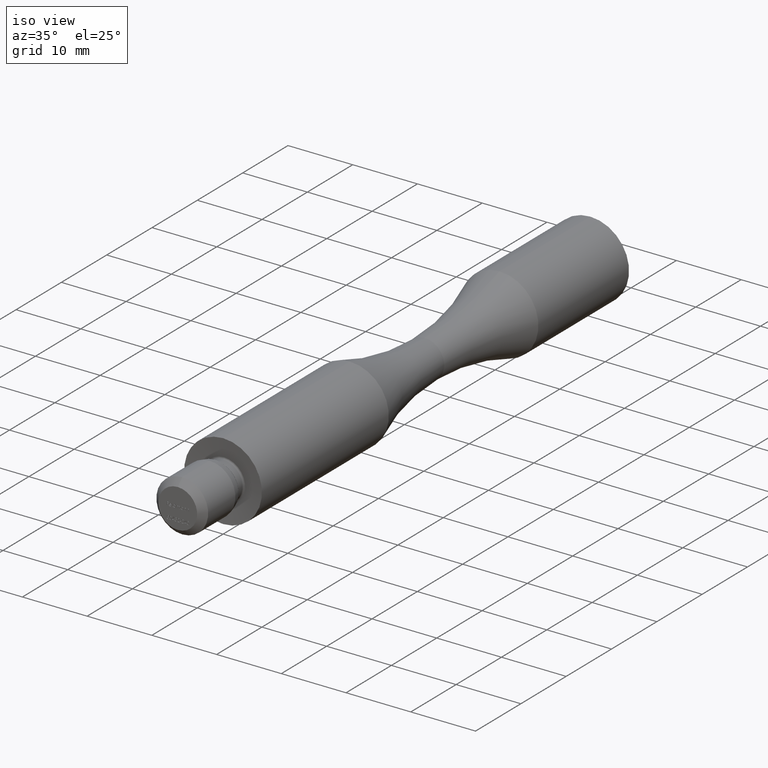
[diagram: clean part render]
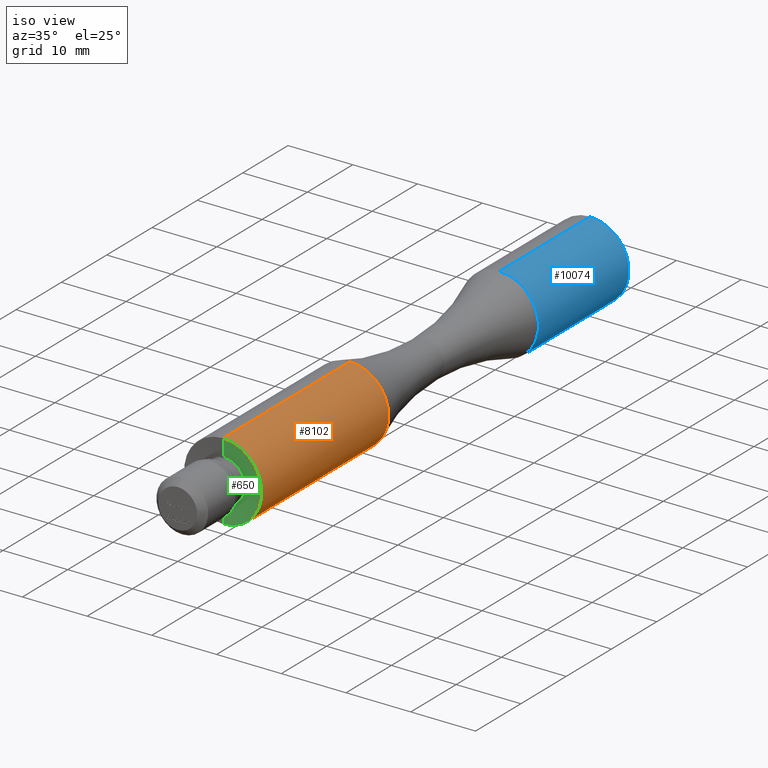
[diagram: same view with three faces highlighted in distinct colors, each labeled with its STEP entity id]
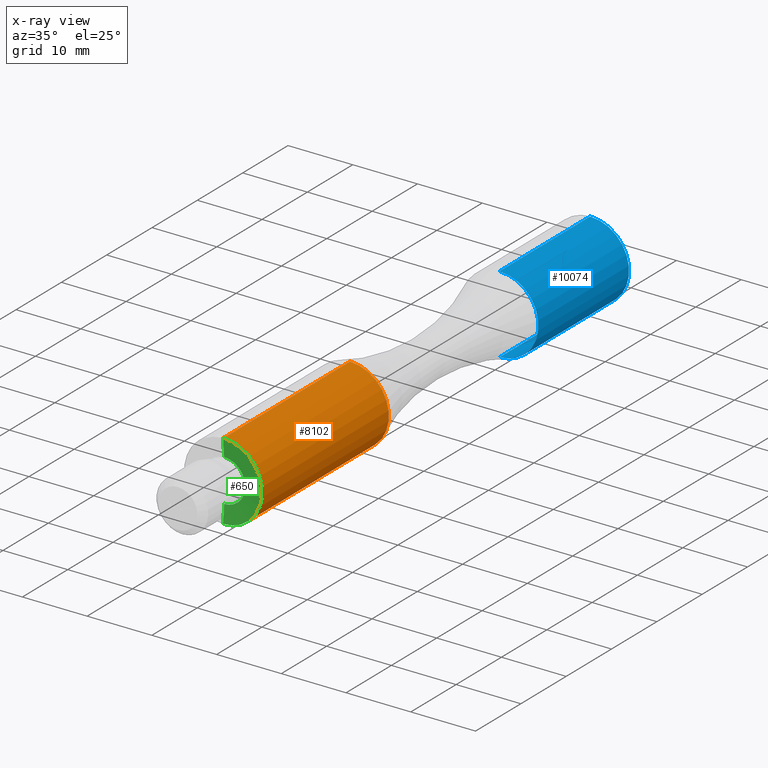
[diagram: x-ray of the same camera — body ghosted, the three highlighted faces saturated]
A machine part, iso view with three faces highlighted in distinct colors.
The next image is the same camera in x-ray (body ghosted, the three faces saturated) — at least one of them is partly hidden behind the body in this view.
Their STEP definitions:

[orange] entity #8102 — the highlighted cylindrical surface (partial cylindrical patch) has radius 6 mm, axis along (-0, -1, -0).
#397 = EDGE_CURVE ( 'NONE', #3908, #11954, #7045, .T. ) ;
#911 = AXIS2_PLACEMENT_3D ( 'NONE', #7086, #2817, #5937 ) ;
#1113 = EDGE_CURVE ( 'NONE', #4530, #3184, #7925, .T. ) ;
#1124 = VECTOR ( 'NONE', #1146, 1000.000000000000000 ) ;
#1146 = DIRECTION ( 'NONE',  ( -0.0000000000000000000, -1.000000000000000000, -0.0000000000000000000 ) ) ;
#2165 = EDGE_CURVE ( 'NONE', #4530, #3908, #9714, .T. ) ;
#2551 = CYLINDRICAL_SURFACE ( 'NONE', #5349, 5.999999999999995600 ) ;
#2690 = DIRECTION ( 'NONE',  ( 0.0000000000000000000, 0.0000000000000000000, -1.000000000000000000 ) ) ;
#2817 = DIRECTION ( 'NONE',  ( -0.0000000000000000000, -1.000000000000000000, -0.0000000000000000000 ) ) ;
#2949 = DIRECTION ( 'NONE',  ( -0.0000000000000000000, -1.000000000000000000, -0.0000000000000000000 ) ) ;
#3184 = VERTEX_POINT ( 'NONE', #3782 ) ;
#3771 = ORIENTED_EDGE ( 'NONE', *, *, #1113, .F. ) ;
#3782 = CARTESIAN_POINT ( 'NONE',  ( 0.0000000000000000000, 4.038967834731580400E-025, -6.000000000000003600 ) ) ;
#3908 = VERTEX_POINT ( 'NONE', #4969 ) ;
#4271 = AXIS2_PLACEMENT_3D ( 'NONE', #10399, #8385, #5217 ) ;
#4305 = ORIENTED_EDGE ( 'NONE', *, *, #9929, .F. ) ;
#4530 = VERTEX_POINT ( 'NONE', #13621 ) ;
#4969 = CARTESIAN_POINT ( 'NONE',  ( 7.347880794884111800E-016, 28.00000000000002100, 5.999999999999991100 ) ) ;
#5217 = DIRECTION ( 'NONE',  ( 0.0000000000000000000, 0.0000000000000000000, -1.000000000000000000 ) ) ;
#5349 = AXIS2_PLACEMENT_3D ( 'NONE', #6913, #9004, #2690 ) ;
#5937 = DIRECTION ( 'NONE',  ( 0.0000000000000000000, 0.0000000000000000000, -1.000000000000000000 ) ) ;
#6913 = CARTESIAN_POINT ( 'NONE',  ( 0.0000000000000000000, 0.0000000000000000000, 0.0000000000000000000 ) ) ;
#7045 = LINE ( 'NONE', #7433, #1124 ) ;
#7086 = CARTESIAN_POINT ( 'NONE',  ( 0.0000000000000000000, 4.038967834731580400E-025, 0.0000000000000000000 ) ) ;
#7431 = CARTESIAN_POINT ( 'NONE',  ( 7.347880794884122700E-016, 4.038967834731580400E-025, 6.000000000000003600 ) ) ;
#7433 = CARTESIAN_POINT ( 'NONE',  ( 7.347880794884114800E-016, 0.0000000000000000000, 5.999999999999995600 ) ) ;
#7640 = ORIENTED_EDGE ( 'NONE', *, *, #2165, .T. ) ;
#7925 = LINE ( 'NONE', #10341, #12357 ) ;
#7928 = CIRCLE ( 'NONE', #911, 6.000000000000000000 ) ;
#8029 = ORIENTED_EDGE ( 'NONE', *, *, #397, .T. ) ;
#8043 = EDGE_LOOP ( 'NONE', ( #7640, #8029, #4305, #3771 ) ) ;
#8102 = ADVANCED_FACE ( 'NONE', ( #9105 ), #2551, .T. ) ;
#8385 = DIRECTION ( 'NONE',  ( -0.0000000000000000000, -1.000000000000000000, -0.0000000000000000000 ) ) ;
#9004 = DIRECTION ( 'NONE',  ( -0.0000000000000000000, -1.000000000000000000, -0.0000000000000000000 ) ) ;
#9105 = FACE_OUTER_BOUND ( 'NONE', #8043, .T. ) ;
#9714 = CIRCLE ( 'NONE', #4271, 5.999999999999991100 ) ;
#9929 = EDGE_CURVE ( 'NONE', #3184, #11954, #7928, .T. ) ;
#10341 = CARTESIAN_POINT ( 'NONE',  ( 0.0000000000000000000, 0.0000000000000000000, -5.999999999999995600 ) ) ;
#10399 = CARTESIAN_POINT ( 'NONE',  ( 0.0000000000000000000, 28.00000000000002100, 0.0000000000000000000 ) ) ;
#11954 = VERTEX_POINT ( 'NONE', #7431 ) ;
#12357 = VECTOR ( 'NONE', #2949, 1000.000000000000000 ) ;
#13621 = CARTESIAN_POINT ( 'NONE',  ( 0.0000000000000000000, 28.00000000000002100, -5.999999999999991100 ) ) ;

[blue] entity #10074 — the highlighted cylindrical surface (partial cylindrical patch) has radius 6 mm, axis along (-0, -1, -0).
#140 = CARTESIAN_POINT ( 'NONE',  ( 7.347880794884121700E-016, 0.0000000000000000000, 6.000000000000001800 ) ) ;
#553 = VERTEX_POINT ( 'NONE', #1287 ) ;
#734 = FACE_OUTER_BOUND ( 'NONE', #10322, .T. ) ;
#1207 = CARTESIAN_POINT ( 'NONE',  ( 0.0000000000000000000, 0.0000000000000000000, 0.0000000000000000000 ) ) ;
#1287 = CARTESIAN_POINT ( 'NONE',  ( 7.347880794884123700E-016, 61.00000000000000000, 6.000000000000003600 ) ) ;
#1539 = DIRECTION ( 'NONE',  ( -0.0000000000000000000, -1.000000000000000000, -0.0000000000000000000 ) ) ;
#2198 = VECTOR ( 'NONE', #11167, 1000.000000000000000 ) ;
#2474 = CIRCLE ( 'NONE', #6934, 6.000000000000002700 ) ;
#2512 = VECTOR ( 'NONE', #5515, 1000.000000000000000 ) ;
#3206 = DIRECTION ( 'NONE',  ( 0.0000000000000000000, 0.0000000000000000000, -1.000000000000000000 ) ) ;
#3301 = EDGE_CURVE ( 'NONE', #5541, #10963, #3625, .T. ) ;
#3625 = CIRCLE ( 'NONE', #13426, 6.000000000000000000 ) ;
#3982 = EDGE_CURVE ( 'NONE', #5541, #9132, #8430, .T. ) ;
#4183 = EDGE_CURVE ( 'NONE', #10963, #553, #7443, .T. ) ;
#4592 = CARTESIAN_POINT ( 'NONE',  ( 0.0000000000000000000, 81.00000000000000000, -6.000000000000000000 ) ) ;
#4702 = CARTESIAN_POINT ( 'NONE',  ( 0.0000000000000000000, 61.00000000000000000, -6.000000000000003600 ) ) ;
#5169 = DIRECTION ( 'NONE',  ( -0.0000000000000000000, -1.000000000000000000, -0.0000000000000000000 ) ) ;
#5515 = DIRECTION ( 'NONE',  ( -0.0000000000000000000, -1.000000000000000000, -0.0000000000000000000 ) ) ;
#5525 = DIRECTION ( 'NONE',  ( -0.0000000000000000000, -1.000000000000000000, -0.0000000000000000000 ) ) ;
#5541 = VERTEX_POINT ( 'NONE', #4592 ) ;
#5680 = DIRECTION ( 'NONE',  ( 0.0000000000000000000, 0.0000000000000000000, -1.000000000000000000 ) ) ;
#5844 = AXIS2_PLACEMENT_3D ( 'NONE', #1207, #5525, #3206 ) ;
#6662 = ORIENTED_EDGE ( 'NONE', *, *, #3301, .T. ) ;
#6934 = AXIS2_PLACEMENT_3D ( 'NONE', #7830, #1539, #5680 ) ;
#7037 = ORIENTED_EDGE ( 'NONE', *, *, #3982, .F. ) ;
#7443 = LINE ( 'NONE', #140, #2512 ) ;
#7830 = CARTESIAN_POINT ( 'NONE',  ( 0.0000000000000000000, 61.00000000000000000, 0.0000000000000000000 ) ) ;
#8382 = CYLINDRICAL_SURFACE ( 'NONE', #5844, 6.000000000000001800 ) ;
#8430 = LINE ( 'NONE', #13230, #2198 ) ;
#9132 = VERTEX_POINT ( 'NONE', #4702 ) ;
#10074 = ADVANCED_FACE ( 'NONE', ( #734 ), #8382, .T. ) ;
#10322 = EDGE_LOOP ( 'NONE', ( #6662, #11078, #10829, #7037 ) ) ;
#10594 = CARTESIAN_POINT ( 'NONE',  ( 0.0000000000000000000, 81.00000000000000000, 0.0000000000000000000 ) ) ;
#10829 = ORIENTED_EDGE ( 'NONE', *, *, #12220, .F. ) ;
#10963 = VERTEX_POINT ( 'NONE', #11893 ) ;
#11078 = ORIENTED_EDGE ( 'NONE', *, *, #4183, .T. ) ;
#11167 = DIRECTION ( 'NONE',  ( -0.0000000000000000000, -1.000000000000000000, -0.0000000000000000000 ) ) ;
#11893 = CARTESIAN_POINT ( 'NONE',  ( 7.347880794884120700E-016, 81.00000000000000000, 6.000000000000000000 ) ) ;
#12220 = EDGE_CURVE ( 'NONE', #9132, #553, #2474, .T. ) ;
#12837 = DIRECTION ( 'NONE',  ( 0.0000000000000000000, 0.0000000000000000000, -1.000000000000000000 ) ) ;
#13230 = CARTESIAN_POINT ( 'NONE',  ( 0.0000000000000000000, 0.0000000000000000000, -6.000000000000001800 ) ) ;
#13426 = AXIS2_PLACEMENT_3D ( 'NONE', #10594, #5169, #12837 ) ;

[green] entity #650 — the highlighted conical surface has half-angle 85 deg.
#435 = DIRECTION ( 'NONE',  ( 1.219986648345620700E-016, -0.08715574274765171300, 0.9961946980917461000 ) ) ;
#472 = EDGE_CURVE ( 'NONE', #12764, #4723, #12141, .T. ) ;
#571 = VECTOR ( 'NONE', #435, 1000.000000000000000 ) ;
#618 = CARTESIAN_POINT ( 'NONE',  ( 4.006785847574704800E-016, 0.2386875398333731000, 3.271788935686913600 ) ) ;
#650 = ADVANCED_FACE ( 'NONE', ( #8178 ), #4641, .F. ) ;
#911 = AXIS2_PLACEMENT_3D ( 'NONE', #7086, #2817, #5937 ) ;
#1419 = DIRECTION ( 'NONE',  ( -0.0000000000000000000, -1.000000000000000000, -0.0000000000000000000 ) ) ;
#2093 = ORIENTED_EDGE ( 'NONE', *, *, #472, .F. ) ;
#2817 = DIRECTION ( 'NONE',  ( -0.0000000000000000000, -1.000000000000000000, -0.0000000000000000000 ) ) ;
#3111 = VECTOR ( 'NONE', #9415, 1000.000000000000000 ) ;
#3184 = VERTEX_POINT ( 'NONE', #3782 ) ;
#3205 = CARTESIAN_POINT ( 'NONE',  ( 0.0000000000000000000, 0.2386875398333731000, -3.271788935686913600 ) ) ;
#3656 = CARTESIAN_POINT ( 'NONE',  ( 0.0000000000000000000, 0.2386875398333731200, 0.0000000000000000000 ) ) ;
#3782 = CARTESIAN_POINT ( 'NONE',  ( 0.0000000000000000000, 4.038967834731580400E-025, -6.000000000000003600 ) ) ;
#3849 = ORIENTED_EDGE ( 'NONE', *, *, #12350, .T. ) ;
#4487 = ORIENTED_EDGE ( 'NONE', *, *, #9929, .T. ) ;
#4641 = CONICAL_SURFACE ( 'NONE', #11837, 3.271788935686913200, 1.483529864195186600 ) ;
#4723 = VERTEX_POINT ( 'NONE', #618 ) ;
#4727 = DIRECTION ( 'NONE',  ( 0.0000000000000000000, 0.0000000000000000000, -1.000000000000000000 ) ) ;
#5922 = LINE ( 'NONE', #9270, #3111 ) ;
#5937 = DIRECTION ( 'NONE',  ( 0.0000000000000000000, 0.0000000000000000000, -1.000000000000000000 ) ) ;
#6398 = EDGE_LOOP ( 'NONE', ( #8589, #2093, #3849, #4487 ) ) ;
#6439 = DIRECTION ( 'NONE',  ( -0.0000000000000000000, -1.000000000000000000, -0.0000000000000000000 ) ) ;
#7086 = CARTESIAN_POINT ( 'NONE',  ( 0.0000000000000000000, 4.038967834731580400E-025, 0.0000000000000000000 ) ) ;
#7431 = CARTESIAN_POINT ( 'NONE',  ( 7.347880794884122700E-016, 4.038967834731580400E-025, 6.000000000000003600 ) ) ;
#7928 = CIRCLE ( 'NONE', #911, 6.000000000000000000 ) ;
#8178 = FACE_OUTER_BOUND ( 'NONE', #6398, .T. ) ;
#8589 = ORIENTED_EDGE ( 'NONE', *, *, #9099, .F. ) ;
#9099 = EDGE_CURVE ( 'NONE', #4723, #11954, #10091, .T. ) ;
#9270 = CARTESIAN_POINT ( 'NONE',  ( 0.0000000000000000000, 0.2386875398333731200, -3.271788935686913200 ) ) ;
#9415 = DIRECTION ( 'NONE',  ( 0.0000000000000000000, -0.08715574274765171300, -0.9961946980917461000 ) ) ;
#9929 = EDGE_CURVE ( 'NONE', #3184, #11954, #7928, .T. ) ;
#10091 = LINE ( 'NONE', #11004, #571 ) ;
#10616 = CARTESIAN_POINT ( 'NONE',  ( 0.0000000000000000000, 0.2386875398333731200, 0.0000000000000000000 ) ) ;
#11004 = CARTESIAN_POINT ( 'NONE',  ( 4.006785847574703800E-016, 0.2386875398333731200, 3.271788935686913200 ) ) ;
#11212 = AXIS2_PLACEMENT_3D ( 'NONE', #10616, #6439, #12721 ) ;
#11837 = AXIS2_PLACEMENT_3D ( 'NONE', #3656, #1419, #4727 ) ;
#11954 = VERTEX_POINT ( 'NONE', #7431 ) ;
#12141 = CIRCLE ( 'NONE', #11212, 3.271788935686913200 ) ;
#12350 = EDGE_CURVE ( 'NONE', #12764, #3184, #5922, .T. ) ;
#12721 = DIRECTION ( 'NONE',  ( 0.0000000000000000000, 0.0000000000000000000, -1.000000000000000000 ) ) ;
#12764 = VERTEX_POINT ( 'NONE', #3205 ) ;